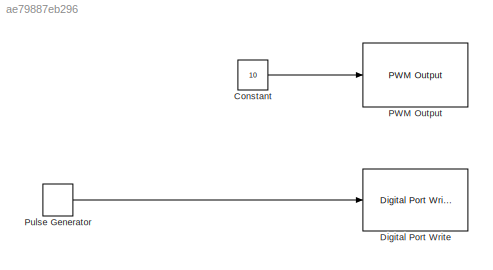
MODEL slx_ae79887eb296
KIND model
CONFIG AbsTol = auto
CONFIG EnableMultiTasking = on
CONFIG FixedStep = auto
CONFIG MaxStep = auto
CONFIG MinStep = auto
CONFIG RelTol = 1e-3
CONFIG SampleTimeConstraint = Unconstrained
CONFIG SolverName = FixedStepAuto
CONFIG StartTime = 0.0
CONFIG StopTime = inf
BLOCK [Constant] Constant
  Value = 10
BLOCK [Reference] Digital Port Write  REF=stm32f4xxblockslib/Digital Port Write
  LibrarySourceBlock = stm32l4xxblockslib/Digital Port Write
  SourceBlock = stm32f4xxblockslib/Digital Port Write
  SourceType = stm32cube.blocks.DigitalPortWrite
BLOCK [Reference] PWM Output  REF=stm32l4xxblockslib/PWM Output
  SourceBlock = stm32l4xxblockslib/PWM Output
  SourceType = stm32cube.blocks.PWMOutput
BLOCK [DiscretePulseGenerator] Pulse Generator
  Period = 10
  PulseType = Time based
  PulseWidth = 50
LINE Constant:1 -> PWM Output:1
LINE Pulse Generator:1 -> Digital Port Write:1
